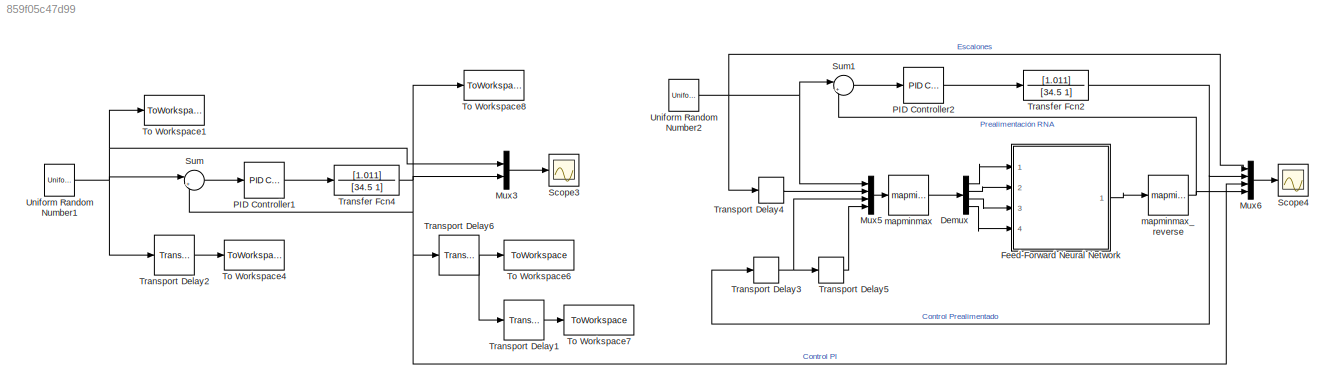
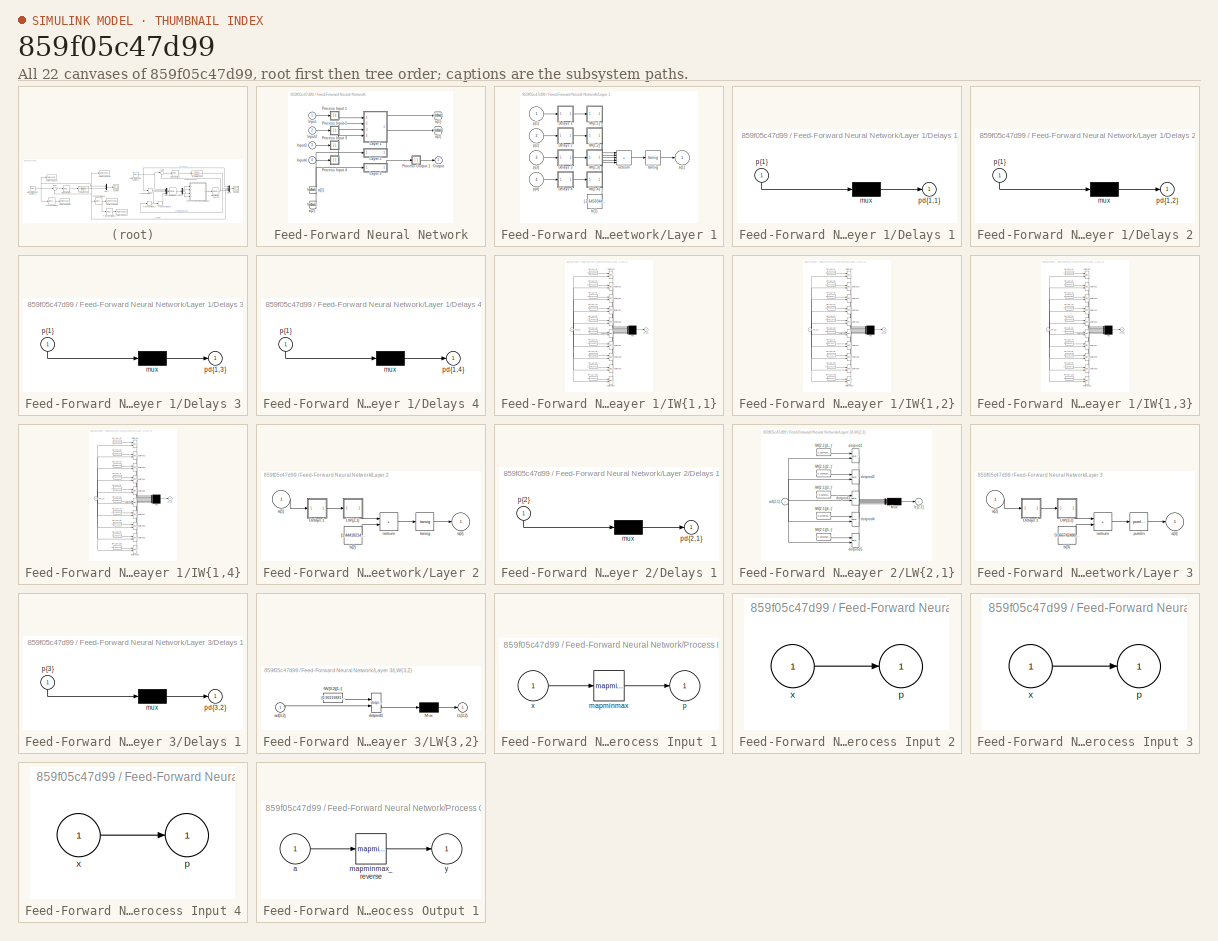
[diagram: thumbnail index - all 22 canvases of the model, root first then tree order]
MODEL slx_859f05c47d99
KIND model
CONFIG AbsTol = auto
CONFIG EnableMultiTasking = off
CONFIG FixedStep = 0.1
CONFIG MaxStep = auto
CONFIG MinStep = auto
CONFIG RelTol = 1e-3
CONFIG SampleTimeConstraint = Unconstrained
CONFIG Solver = FixedStepAuto
CONFIG SolverName = FixedStepAuto
CONFIG StartTime = 0.0
CONFIG StopTime = 1000
BLOCK [Demux] Demux
  Ports = [1, 4]
BLOCK [SubSystem] Feed-Forward Neural Network
  Ports = [4, 1]
  RequestExecContextInheritance = off
BLOCK [From] Feed-Forward Neural Network/ a{1} 
  GotoTag = feedback1
BLOCK [From] Feed-Forward Neural Network/ a{2} 
  GotoTag = feedback2
BLOCK [Inport] Feed-Forward Neural Network/Input
  PortDimensions = 1
BLOCK [Inport] Feed-Forward Neural Network/Input2
  Port = 2
  PortDimensions = 1
BLOCK [Inport] Feed-Forward Neural Network/Input3
  Port = 3
  PortDimensions = 1
BLOCK [Inport] Feed-Forward Neural Network/Input4
  Port = 4
  PortDimensions = 1
BLOCK [SubSystem] Feed-Forward Neural Network/Layer 1
  Ports = [4, 1]
  RequestExecContextInheritance = off
BLOCK [SubSystem] Feed-Forward Neural Network/Layer 1/Delays 1
  Ports = [1, 1]
  RequestExecContextInheritance = off
BLOCK [Mux] Feed-Forward Neural Network/Layer 1/Delays 1/mux
  Inputs = 1
  Ports = [1, 1]
BLOCK [Outport] Feed-Forward Neural Network/Layer 1/Delays 1/pd{1,1}
BLOCK [Inport] Feed-Forward Neural Network/Layer 1/Delays 1/p{1}
  NameLocation = left
  PortDimensions = 1
BLOCK [SubSystem] Feed-Forward Neural Network/Layer 1/Delays 2
  Ports = [1, 1]
  RequestExecContextInheritance = off
BLOCK [Mux] Feed-Forward Neural Network/Layer 1/Delays 2/mux
  Inputs = 1
  Ports = [1, 1]
BLOCK [Outport] Feed-Forward Neural Network/Layer 1/Delays 2/pd{1,2}
BLOCK [Inport] Feed-Forward Neural Network/Layer 1/Delays 2/p{1}
  NameLocation = left
  PortDimensions = 1
BLOCK [SubSystem] Feed-Forward Neural Network/Layer 1/Delays 3
  Ports = [1, 1]
  RequestExecContextInheritance = off
BLOCK [Mux] Feed-Forward Neural Network/Layer 1/Delays 3/mux
  Inputs = 1
  Ports = [1, 1]
BLOCK [Outport] Feed-Forward Neural Network/Layer 1/Delays 3/pd{1,3}
BLOCK [Inport] Feed-Forward Neural Network/Layer 1/Delays 3/p{1}
  NameLocation = left
  PortDimensions = 1
BLOCK [SubSystem] Feed-Forward Neural Network/Layer 1/Delays 4
  Ports = [1, 1]
  RequestExecContextInheritance = off
BLOCK [Mux] Feed-Forward Neural Network/Layer 1/Delays 4/mux
  Inputs = 1
  Ports = [1, 1]
BLOCK [Outport] Feed-Forward Neural Network/Layer 1/Delays 4/pd{1,4}
BLOCK [Inport] Feed-Forward Neural Network/Layer 1/Delays 4/p{1}
  NameLocation = left
  PortDimensions = 1
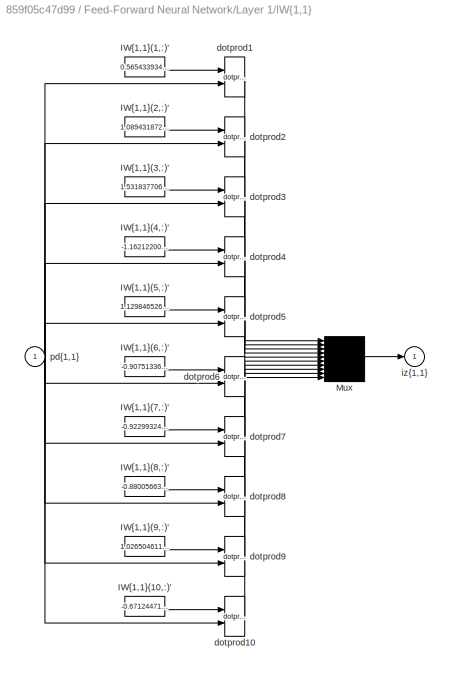
BLOCK [SubSystem] Feed-Forward Neural Network/Layer 1/IW{1,1}
  Ports = [1, 1]
  RequestExecContextInheritance = off
BLOCK [Constant] Feed-Forward Neural Network/Layer 1/IW{1,1}/IW{1,1}(1,:)'
  Value = 0.56543393431241983915214177613961510360240936279296875
BLOCK [Constant] Feed-Forward Neural Network/Layer 1/IW{1,1}/IW{1,1}(10,:)'
  Value = -0.67124471947095198931521053964388556778430938720703125
BLOCK [Constant] Feed-Forward Neural Network/Layer 1/IW{1,1}/IW{1,1}(2,:)'
  Value = 1.0894318724958613753273084512329660356044769287109375
BLOCK [Constant] Feed-Forward Neural Network/Layer 1/IW{1,1}/IW{1,1}(3,:)'
  Value = 1.53183770683037412396743093268014490604400634765625
BLOCK [Constant] Feed-Forward Neural Network/Layer 1/IW{1,1}/IW{1,1}(4,:)'
  Value = -1.162122005361766685638258422841317951679229736328125
BLOCK [Constant] Feed-Forward Neural Network/Layer 1/IW{1,1}/IW{1,1}(5,:)'
  Value = 1.1298465262484473914383897863444872200489044189453125
BLOCK [Constant] Feed-Forward Neural Network/Layer 1/IW{1,1}/IW{1,1}(6,:)'
  Value = -0.90751336673212834593726938692270778119564056396484375
BLOCK [Constant] Feed-Forward Neural Network/Layer 1/IW{1,1}/IW{1,1}(7,:)'
  Value = -0.9229932475193656227219207721645943820476531982421875
BLOCK [Constant] Feed-Forward Neural Network/Layer 1/IW{1,1}/IW{1,1}(8,:)'
  Value = -0.88005663794374056063674061078927479684352874755859375
BLOCK [Constant] Feed-Forward Neural Network/Layer 1/IW{1,1}/IW{1,1}(9,:)'
  Value = 1.02650461189359720748370818910188972949981689453125
BLOCK [Mux] Feed-Forward Neural Network/Layer 1/IW{1,1}/Mux
  Inputs = 10
  Ports = [10, 1]
BLOCK [Reference] Feed-Forward Neural Network/Layer 1/IW{1,1}/dotprod1  REF=neural/Weight Functions/dotprod
  Ports = [2, 1]
  SourceBlock = neural/Weight Functions/dotprod
  SourceProductBaseCode = NN
  SourceType = DOTPROD
BLOCK [Reference] Feed-Forward Neural Network/Layer 1/IW{1,1}/dotprod10  REF=neural/Weight Functions/dotprod
  Ports = [2, 1]
  SourceBlock = neural/Weight Functions/dotprod
  SourceProductBaseCode = NN
  SourceType = DOTPROD
BLOCK [Reference] Feed-Forward Neural Network/Layer 1/IW{1,1}/dotprod2  REF=neural/Weight Functions/dotprod
  Ports = [2, 1]
  SourceBlock = neural/Weight Functions/dotprod
  SourceProductBaseCode = NN
  SourceType = DOTPROD
BLOCK [Reference] Feed-Forward Neural Network/Layer 1/IW{1,1}/dotprod3  REF=neural/Weight Functions/dotprod
  Ports = [2, 1]
  SourceBlock = neural/Weight Functions/dotprod
  SourceProductBaseCode = NN
  SourceType = DOTPROD
BLOCK [Reference] Feed-Forward Neural Network/Layer 1/IW{1,1}/dotprod4  REF=neural/Weight Functions/dotprod
  Ports = [2, 1]
  SourceBlock = neural/Weight Functions/dotprod
  SourceProductBaseCode = NN
  SourceType = DOTPROD
BLOCK [Reference] Feed-Forward Neural Network/Layer 1/IW{1,1}/dotprod5  REF=neural/Weight Functions/dotprod
  Ports = [2, 1]
  SourceBlock = neural/Weight Functions/dotprod
  SourceProductBaseCode = NN
  SourceType = DOTPROD
BLOCK [Reference] Feed-Forward Neural Network/Layer 1/IW{1,1}/dotprod6  REF=neural/Weight Functions/dotprod
  Ports = [2, 1]
  SourceBlock = neural/Weight Functions/dotprod
  SourceProductBaseCode = NN
  SourceType = DOTPROD
BLOCK [Reference] Feed-Forward Neural Network/Layer 1/IW{1,1}/dotprod7  REF=neural/Weight Functions/dotprod
  Ports = [2, 1]
  SourceBlock = neural/Weight Functions/dotprod
  SourceProductBaseCode = NN
  SourceType = DOTPROD
BLOCK [Reference] Feed-Forward Neural Network/Layer 1/IW{1,1}/dotprod8  REF=neural/Weight Functions/dotprod
  Ports = [2, 1]
  SourceBlock = neural/Weight Functions/dotprod
  SourceProductBaseCode = NN
  SourceType = DOTPROD
BLOCK [Reference] Feed-Forward Neural Network/Layer 1/IW{1,1}/dotprod9  REF=neural/Weight Functions/dotprod
  Ports = [2, 1]
  SourceBlock = neural/Weight Functions/dotprod
  SourceProductBaseCode = NN
  SourceType = DOTPROD
BLOCK [Outport] Feed-Forward Neural Network/Layer 1/IW{1,1}/iz{1,1}
BLOCK [Inport] Feed-Forward Neural Network/Layer 1/IW{1,1}/pd{1,1}
  PortDimensions = 1
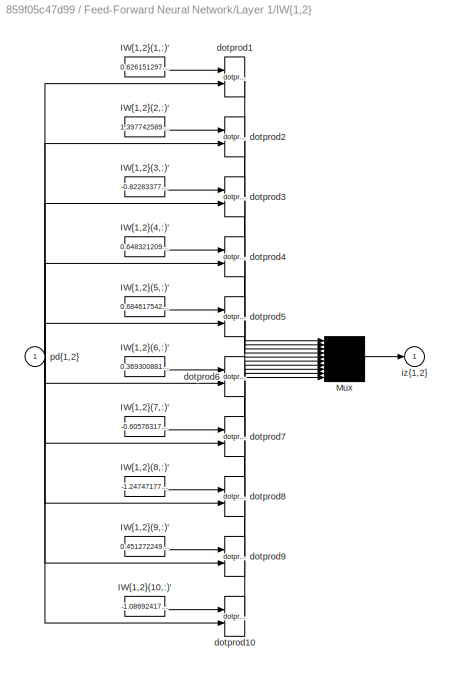
BLOCK [SubSystem] Feed-Forward Neural Network/Layer 1/IW{1,2}
  Ports = [1, 1]
  RequestExecContextInheritance = off
BLOCK [Constant] Feed-Forward Neural Network/Layer 1/IW{1,2}/IW{1,2}(1,:)'
  Value = 0.62615129700882443675169497510069049894809722900390625
BLOCK [Constant] Feed-Forward Neural Network/Layer 1/IW{1,2}/IW{1,2}(10,:)'
  Value = -1.0869241741434552128708901364007033407688140869140625
BLOCK [Constant] Feed-Forward Neural Network/Layer 1/IW{1,2}/IW{1,2}(2,:)'
  Value = 1.39774258904497283850787425762973725795745849609375
BLOCK [Constant] Feed-Forward Neural Network/Layer 1/IW{1,2}/IW{1,2}(3,:)'
  Value = -0.822833777575279423643905829521827399730682373046875
BLOCK [Constant] Feed-Forward Neural Network/Layer 1/IW{1,2}/IW{1,2}(4,:)'
  Value = 0.6483212094714454476473974864347837865352630615234375
BLOCK [Constant] Feed-Forward Neural Network/Layer 1/IW{1,2}/IW{1,2}(5,:)'
  Value = 0.68461754258206752865589805878698825836181640625
BLOCK [Constant] Feed-Forward Neural Network/Layer 1/IW{1,2}/IW{1,2}(6,:)'
  Value = 0.36930088134260719012758045209920965135097503662109375
BLOCK [Constant] Feed-Forward Neural Network/Layer 1/IW{1,2}/IW{1,2}(7,:)'
  Value = -0.605763175167964629252992381225340068340301513671875
BLOCK [Constant] Feed-Forward Neural Network/Layer 1/IW{1,2}/IW{1,2}(8,:)'
  Value = -1.2474717751429558187936663671280257403850555419921875
BLOCK [Constant] Feed-Forward Neural Network/Layer 1/IW{1,2}/IW{1,2}(9,:)'
  Value = 0.451272249611611275810219012782908976078033447265625
BLOCK [Mux] Feed-Forward Neural Network/Layer 1/IW{1,2}/Mux
  Inputs = 10
  Ports = [10, 1]
BLOCK [Reference] Feed-Forward Neural Network/Layer 1/IW{1,2}/dotprod1  REF=neural/Weight Functions/dotprod
  Ports = [2, 1]
  SourceBlock = neural/Weight Functions/dotprod
  SourceProductBaseCode = NN
  SourceType = DOTPROD
BLOCK [Reference] Feed-Forward Neural Network/Layer 1/IW{1,2}/dotprod10  REF=neural/Weight Functions/dotprod
  Ports = [2, 1]
  SourceBlock = neural/Weight Functions/dotprod
  SourceProductBaseCode = NN
  SourceType = DOTPROD
BLOCK [Reference] Feed-Forward Neural Network/Layer 1/IW{1,2}/dotprod2  REF=neural/Weight Functions/dotprod
  Ports = [2, 1]
  SourceBlock = neural/Weight Functions/dotprod
  SourceProductBaseCode = NN
  SourceType = DOTPROD
BLOCK [Reference] Feed-Forward Neural Network/Layer 1/IW{1,2}/dotprod3  REF=neural/Weight Functions/dotprod
  Ports = [2, 1]
  SourceBlock = neural/Weight Functions/dotprod
  SourceProductBaseCode = NN
  SourceType = DOTPROD
BLOCK [Reference] Feed-Forward Neural Network/Layer 1/IW{1,2}/dotprod4  REF=neural/Weight Functions/dotprod
  Ports = [2, 1]
  SourceBlock = neural/Weight Functions/dotprod
  SourceProductBaseCode = NN
  SourceType = DOTPROD
BLOCK [Reference] Feed-Forward Neural Network/Layer 1/IW{1,2}/dotprod5  REF=neural/Weight Functions/dotprod
  Ports = [2, 1]
  SourceBlock = neural/Weight Functions/dotprod
  SourceProductBaseCode = NN
  SourceType = DOTPROD
BLOCK [Reference] Feed-Forward Neural Network/Layer 1/IW{1,2}/dotprod6  REF=neural/Weight Functions/dotprod
  Ports = [2, 1]
  SourceBlock = neural/Weight Functions/dotprod
  SourceProductBaseCode = NN
  SourceType = DOTPROD
BLOCK [Reference] Feed-Forward Neural Network/Layer 1/IW{1,2}/dotprod7  REF=neural/Weight Functions/dotprod
  Ports = [2, 1]
  SourceBlock = neural/Weight Functions/dotprod
  SourceProductBaseCode = NN
  SourceType = DOTPROD
BLOCK [Reference] Feed-Forward Neural Network/Layer 1/IW{1,2}/dotprod8  REF=neural/Weight Functions/dotprod
  Ports = [2, 1]
  SourceBlock = neural/Weight Functions/dotprod
  SourceProductBaseCode = NN
  SourceType = DOTPROD
BLOCK [Reference] Feed-Forward Neural Network/Layer 1/IW{1,2}/dotprod9  REF=neural/Weight Functions/dotprod
  Ports = [2, 1]
  SourceBlock = neural/Weight Functions/dotprod
  SourceProductBaseCode = NN
  SourceType = DOTPROD
BLOCK [Outport] Feed-Forward Neural Network/Layer 1/IW{1,2}/iz{1,2}
BLOCK [Inport] Feed-Forward Neural Network/Layer 1/IW{1,2}/pd{1,2}
  PortDimensions = 1
BLOCK [SubSystem] Feed-Forward Neural Network/Layer 1/IW{1,3}
  Ports = [1, 1]
  RequestExecContextInheritance = off
BLOCK [Constant] Feed-Forward Neural Network/Layer 1/IW{1,3}/IW{1,3}(1,:)'
  Value = 1.6645863934005740158994512967183254659175872802734375
BLOCK [Constant] Feed-Forward Neural Network/Layer 1/IW{1,3}/IW{1,3}(10,:)'
  Value = -0.99969560778253896415890267235226929187774658203125
BLOCK [Constant] Feed-Forward Neural Network/Layer 1/IW{1,3}/IW{1,3}(2,:)'
  Value = -0.266695674288085715630813865573145449161529541015625
BLOCK [Constant] Feed-Forward Neural Network/Layer 1/IW{1,3}/IW{1,3}(3,:)'
  Value = -0.4295518903355792783571587278856895864009857177734375
BLOCK [Constant] Feed-Forward Neural Network/Layer 1/IW{1,3}/IW{1,3}(4,:)'
  Value = 0.6670166096274223743733955416246317327022552490234375
BLOCK [Constant] Feed-Forward Neural Network/Layer 1/IW{1,3}/IW{1,3}(5,:)'
  Value = -1.3894570953176401673090367694385349750518798828125
BLOCK [Constant] Feed-Forward Neural Network/Layer 1/IW{1,3}/IW{1,3}(6,:)'
  Value = 1.9091928523211214585586503744707442820072174072265625
BLOCK [Constant] Feed-Forward Neural Network/Layer 1/IW{1,3}/IW{1,3}(7,:)'
  Value = -0.8338653482967626207056355269742198288440704345703125
BLOCK [Constant] Feed-Forward Neural Network/Layer 1/IW{1,3}/IW{1,3}(8,:)'
  Value = -0.292187287584066035517338377758278511464595794677734375
BLOCK [Constant] Feed-Forward Neural Network/Layer 1/IW{1,3}/IW{1,3}(9,:)'
  Value = 1.75519844722857154550865743658505380153656005859375
BLOCK [Mux] Feed-Forward Neural Network/Layer 1/IW{1,3}/Mux
  Inputs = 10
  Ports = [10, 1]
BLOCK [Reference] Feed-Forward Neural Network/Layer 1/IW{1,3}/dotprod1  REF=neural/Weight Functions/dotprod
  Ports = [2, 1]
  SourceBlock = neural/Weight Functions/dotprod
  SourceProductBaseCode = NN
  SourceType = DOTPROD
BLOCK [Reference] Feed-Forward Neural Network/Layer 1/IW{1,3}/dotprod10  REF=neural/Weight Functions/dotprod
  Ports = [2, 1]
  SourceBlock = neural/Weight Functions/dotprod
  SourceProductBaseCode = NN
  SourceType = DOTPROD
BLOCK [Reference] Feed-Forward Neural Network/Layer 1/IW{1,3}/dotprod2  REF=neural/Weight Functions/dotprod
  Ports = [2, 1]
  SourceBlock = neural/Weight Functions/dotprod
  SourceProductBaseCode = NN
  SourceType = DOTPROD
BLOCK [Reference] Feed-Forward Neural Network/Layer 1/IW{1,3}/dotprod3  REF=neural/Weight Functions/dotprod
  Ports = [2, 1]
  SourceBlock = neural/Weight Functions/dotprod
  SourceProductBaseCode = NN
  SourceType = DOTPROD
BLOCK [Reference] Feed-Forward Neural Network/Layer 1/IW{1,3}/dotprod4  REF=neural/Weight Functions/dotprod
  Ports = [2, 1]
  SourceBlock = neural/Weight Functions/dotprod
  SourceProductBaseCode = NN
  SourceType = DOTPROD
BLOCK [Reference] Feed-Forward Neural Network/Layer 1/IW{1,3}/dotprod5  REF=neural/Weight Functions/dotprod
  Ports = [2, 1]
  SourceBlock = neural/Weight Functions/dotprod
  SourceProductBaseCode = NN
  SourceType = DOTPROD
BLOCK [Reference] Feed-Forward Neural Network/Layer 1/IW{1,3}/dotprod6  REF=neural/Weight Functions/dotprod
  Ports = [2, 1]
  SourceBlock = neural/Weight Functions/dotprod
  SourceProductBaseCode = NN
  SourceType = DOTPROD
BLOCK [Reference] Feed-Forward Neural Network/Layer 1/IW{1,3}/dotprod7  REF=neural/Weight Functions/dotprod
  Ports = [2, 1]
  SourceBlock = neural/Weight Functions/dotprod
  SourceProductBaseCode = NN
  SourceType = DOTPROD
BLOCK [Reference] Feed-Forward Neural Network/Layer 1/IW{1,3}/dotprod8  REF=neural/Weight Functions/dotprod
  Ports = [2, 1]
  SourceBlock = neural/Weight Functions/dotprod
  SourceProductBaseCode = NN
  SourceType = DOTPROD
BLOCK [Reference] Feed-Forward Neural Network/Layer 1/IW{1,3}/dotprod9  REF=neural/Weight Functions/dotprod
  Ports = [2, 1]
  SourceBlock = neural/Weight Functions/dotprod
  SourceProductBaseCode = NN
  SourceType = DOTPROD
BLOCK [Outport] Feed-Forward Neural Network/Layer 1/IW{1,3}/iz{1,3}
BLOCK [Inport] Feed-Forward Neural Network/Layer 1/IW{1,3}/pd{1,3}
  PortDimensions = 1
BLOCK [SubSystem] Feed-Forward Neural Network/Layer 1/IW{1,4}
  Ports = [1, 1]
  RequestExecContextInheritance = off
BLOCK [Constant] Feed-Forward Neural Network/Layer 1/IW{1,4}/IW{1,4}(1,:)'
  Value = -1.2943753601777545636508648385643027722835540771484375
BLOCK [Constant] Feed-Forward Neural Network/Layer 1/IW{1,4}/IW{1,4}(10,:)'
  Value = 2.084081432031244407454551037517376244068145751953125
BLOCK [Constant] Feed-Forward Neural Network/Layer 1/IW{1,4}/IW{1,4}(2,:)'
  Value = -0.7898513527902168984695663311867974698543548583984375
BLOCK [Constant] Feed-Forward Neural Network/Layer 1/IW{1,4}/IW{1,4}(3,:)'
  Value = -0.70955799003562514126741689324262551963329315185546875
BLOCK [Constant] Feed-Forward Neural Network/Layer 1/IW{1,4}/IW{1,4}(4,:)'
  Value = -0.52802909319926694120539423238369636237621307373046875
BLOCK [Constant] Feed-Forward Neural Network/Layer 1/IW{1,4}/IW{1,4}(5,:)'
  Value = 0.449134424632739837068839960920740850269794464111328125
BLOCK [Constant] Feed-Forward Neural Network/Layer 1/IW{1,4}/IW{1,4}(6,:)'
  Value = -1.16435235129654213181993327452801167964935302734375
BLOCK [Constant] Feed-Forward Neural Network/Layer 1/IW{1,4}/IW{1,4}(7,:)'
  Value = 0.76928562656517740503403501861612312495708465576171875
BLOCK [Constant] Feed-Forward Neural Network/Layer 1/IW{1,4}/IW{1,4}(8,:)'
  Value = 1.18871102922463389717222526087425649166107177734375
BLOCK [Constant] Feed-Forward Neural Network/Layer 1/IW{1,4}/IW{1,4}(9,:)'
  Value = -1.3138134048477592141779268786194734275341033935546875
BLOCK [Mux] Feed-Forward Neural Network/Layer 1/IW{1,4}/Mux
  Inputs = 10
  Ports = [10, 1]
BLOCK [Reference] Feed-Forward Neural Network/Layer 1/IW{1,4}/dotprod1  REF=neural/Weight Functions/dotprod
  Ports = [2, 1]
  SourceBlock = neural/Weight Functions/dotprod
  SourceProductBaseCode = NN
  SourceType = DOTPROD
BLOCK [Reference] Feed-Forward Neural Network/Layer 1/IW{1,4}/dotprod10  REF=neural/Weight Functions/dotprod
  Ports = [2, 1]
  SourceBlock = neural/Weight Functions/dotprod
  SourceProductBaseCode = NN
  SourceType = DOTPROD
BLOCK [Reference] Feed-Forward Neural Network/Layer 1/IW{1,4}/dotprod2  REF=neural/Weight Functions/dotprod
  Ports = [2, 1]
  SourceBlock = neural/Weight Functions/dotprod
  SourceProductBaseCode = NN
  SourceType = DOTPROD
BLOCK [Reference] Feed-Forward Neural Network/Layer 1/IW{1,4}/dotprod3  REF=neural/Weight Functions/dotprod
  Ports = [2, 1]
  SourceBlock = neural/Weight Functions/dotprod
  SourceProductBaseCode = NN
  SourceType = DOTPROD
BLOCK [Reference] Feed-Forward Neural Network/Layer 1/IW{1,4}/dotprod4  REF=neural/Weight Functions/dotprod
  Ports = [2, 1]
  SourceBlock = neural/Weight Functions/dotprod
  SourceProductBaseCode = NN
  SourceType = DOTPROD
BLOCK [Reference] Feed-Forward Neural Network/Layer 1/IW{1,4}/dotprod5  REF=neural/Weight Functions/dotprod
  Ports = [2, 1]
  SourceBlock = neural/Weight Functions/dotprod
  SourceProductBaseCode = NN
  SourceType = DOTPROD
BLOCK [Reference] Feed-Forward Neural Network/Layer 1/IW{1,4}/dotprod6  REF=neural/Weight Functions/dotprod
  Ports = [2, 1]
  SourceBlock = neural/Weight Functions/dotprod
  SourceProductBaseCode = NN
  SourceType = DOTPROD
BLOCK [Reference] Feed-Forward Neural Network/Layer 1/IW{1,4}/dotprod7  REF=neural/Weight Functions/dotprod
  Ports = [2, 1]
  SourceBlock = neural/Weight Functions/dotprod
  SourceProductBaseCode = NN
  SourceType = DOTPROD
BLOCK [Reference] Feed-Forward Neural Network/Layer 1/IW{1,4}/dotprod8  REF=neural/Weight Functions/dotprod
  Ports = [2, 1]
  SourceBlock = neural/Weight Functions/dotprod
  SourceProductBaseCode = NN
  SourceType = DOTPROD
BLOCK [Reference] Feed-Forward Neural Network/Layer 1/IW{1,4}/dotprod9  REF=neural/Weight Functions/dotprod
  Ports = [2, 1]
  SourceBlock = neural/Weight Functions/dotprod
  SourceProductBaseCode = NN
  SourceType = DOTPROD
BLOCK [Outport] Feed-Forward Neural Network/Layer 1/IW{1,4}/iz{1,4}
BLOCK [Inport] Feed-Forward Neural Network/Layer 1/IW{1,4}/pd{1,4}
  PortDimensions = 1
BLOCK [Outport] Feed-Forward Neural Network/Layer 1/a{1}
  InitialOutput = [0;0;0;0;0;0;0;0;0;0]
BLOCK [Constant] Feed-Forward Neural Network/Layer 1/b{1}
  Value = [-2.645034457355993851024322793819010257720947265625;-1.508379012577794497929062345065176486968994140625;-1.3072123814539364783371411249390803277492523193359375;0.50313851768314676871085566745023243129253387451171875;0.1397685409599163930405296696335426531732082366943359375;-0.5245249752405436449720355085446499288082122802734375;-0.9730845295591505905719031943590380251407623291015625;-1.2426946001...<+145ch>
BLOCK [Sum] Feed-Forward Neural Network/Layer 1/netsum
  IconShape = rectangular
  InputSameDT = on
  Inputs = 5
  OutDataTypeStr = Inherit: Same as first input
  Ports = [5, 1]
  SaturateOnIntegerOverflow = on
BLOCK [Inport] Feed-Forward Neural Network/Layer 1/p{1}
  PortDimensions = 1
BLOCK [Inport] Feed-Forward Neural Network/Layer 1/p{2}
  Port = 2
  PortDimensions = 1
BLOCK [Inport] Feed-Forward Neural Network/Layer 1/p{3}
  Port = 3
  PortDimensions = 1
BLOCK [Inport] Feed-Forward Neural Network/Layer 1/p{4}
  Port = 4
  PortDimensions = 1
BLOCK [Reference] Feed-Forward Neural Network/Layer 1/tansig  REF=neural/Transfer Functions/tansig
  Ports = [1, 1]
  SourceBlock = neural/Transfer Functions/tansig
  SourceProductBaseCode = NN
  SourceType = TANSIG
BLOCK [SubSystem] Feed-Forward Neural Network/Layer 2
  Ports = [1, 1]
  RequestExecContextInheritance = off
BLOCK [SubSystem] Feed-Forward Neural Network/Layer 2/Delays 1
  Ports = [1, 1]
  RequestExecContextInheritance = off
BLOCK [Mux] Feed-Forward Neural Network/Layer 2/Delays 1/mux
  Inputs = 1
  Ports = [1, 1]
BLOCK [Outport] Feed-Forward Neural Network/Layer 2/Delays 1/pd{2,1}
BLOCK [Inport] Feed-Forward Neural Network/Layer 2/Delays 1/p{2}
  NameLocation = left
  PortDimensions = 10
BLOCK [SubSystem] Feed-Forward Neural Network/Layer 2/LW{2,1}
  Ports = [1, 1]
  RequestExecContextInheritance = off
BLOCK [Constant] Feed-Forward Neural Network/Layer 2/LW{2,1}/IW{2,1}(1,:)'
  Value = [0.1354401509569258532650337656377814710140228271484375;-0.01421113913123620182965556324461431358940899372100830078125;-1.048241918439595909973149900906719267368316650390625;-0.421937071029474974892536920378915965557098388671875;-0.2371775375539734997953900119682657532393932342529296875;0.807006589788321182510344442562200129032135009765625;0.787781764690547614549132049432955682277679443359375;-0.6...<+162ch>
BLOCK [Constant] Feed-Forward Neural Network/Layer 2/LW{2,1}/IW{2,1}(2,:)'
  Value = [0.240461909821431785161394145688973367214202880859375;-0.14560895222818592831259820741252042353153228759765625;-0.65407342096412579568465162083157338201999664306640625;-0.5806764026784383414536705458885990083217620849609375;0.38887411023773676976844626551610417664051055908203125;0.69453111755627794376977135470951907336711883544921875;-0.152313413464593094825971775208017788827419281005859375;-0.57...<+160ch>
BLOCK [Constant] Feed-Forward Neural Network/Layer 2/LW{2,1}/IW{2,1}(3,:)'
  Value = [-0.1506042382159744619229968520812690258026123046875;0.1392987937933017061897800203951192088425159454345703125;0.26354830574405874177301711824839003384113311767578125;-0.81118987516533047621436480767442844808101654052734375;-0.84357072505529606676333287396118976175785064697265625;-0.0076624026257585721444431925419848994351923465728759765625;-0.51317659105508905970083333158981986343860626220703125...<+172ch>
BLOCK [Constant] Feed-Forward Neural Network/Layer 2/LW{2,1}/IW{2,1}(4,:)'
  Value = [0.2378973625783947498657511232522665522992610931396484375;0.425071705670643618102388927582069300115108489990234375;1.0837831391761252319838604307733476161956787109375;-0.0048050310025101981847850396434296271763741970062255859375;-0.454098660630551986816527687551570124924182891845703125;-0.459574782583480334618997176221455447375774383544921875;0.5757968720784258920275533455424010753631591796875;0....<+167ch>
BLOCK [Constant] Feed-Forward Neural Network/Layer 2/LW{2,1}/IW{2,1}(5,:)'
  Value = [0.287529681271754322668954273467534221708774566650390625;0.6062529033524064470128678294713608920574188232421875;-0.050892899778794901954892537787600304000079631805419921875;0.09352015600599523914571165050801937468349933624267578125;-0.6563451233726127487244639269192703068256378173828125;1.381202529814203217028989456593990325927734375;-0.001553259790010478886418399113722443871665745973587036132812...<+175ch>
BLOCK [Mux] Feed-Forward Neural Network/Layer 2/LW{2,1}/Mux
  Inputs = 5
  Ports = [5, 1]
BLOCK [Inport] Feed-Forward Neural Network/Layer 2/LW{2,1}/ad{2,1}
  PortDimensions = 10
BLOCK [Reference] Feed-Forward Neural Network/Layer 2/LW{2,1}/dotprod1  REF=neural/Weight Functions/dotprod
  Ports = [2, 1]
  SourceBlock = neural/Weight Functions/dotprod
  SourceProductBaseCode = NN
  SourceType = DOTPROD
BLOCK [Reference] Feed-Forward Neural Network/Layer 2/LW{2,1}/dotprod2  REF=neural/Weight Functions/dotprod
  Ports = [2, 1]
  SourceBlock = neural/Weight Functions/dotprod
  SourceProductBaseCode = NN
  SourceType = DOTPROD
BLOCK [Reference] Feed-Forward Neural Network/Layer 2/LW{2,1}/dotprod3  REF=neural/Weight Functions/dotprod
  Ports = [2, 1]
  SourceBlock = neural/Weight Functions/dotprod
  SourceProductBaseCode = NN
  SourceType = DOTPROD
BLOCK [Reference] Feed-Forward Neural Network/Layer 2/LW{2,1}/dotprod4  REF=neural/Weight Functions/dotprod
  Ports = [2, 1]
  SourceBlock = neural/Weight Functions/dotprod
  SourceProductBaseCode = NN
  SourceType = DOTPROD
BLOCK [Reference] Feed-Forward Neural Network/Layer 2/LW{2,1}/dotprod5  REF=neural/Weight Functions/dotprod
  Ports = [2, 1]
  SourceBlock = neural/Weight Functions/dotprod
  SourceProductBaseCode = NN
  SourceType = DOTPROD
BLOCK [Outport] Feed-Forward Neural Network/Layer 2/LW{2,1}/lz{2,1}
BLOCK [Inport] Feed-Forward Neural Network/Layer 2/a{1} 
  PortDimensions = 10
BLOCK [Outport] Feed-Forward Neural Network/Layer 2/a{2}
  InitialOutput = [0;0;0;0;0]
BLOCK [Constant] Feed-Forward Neural Network/Layer 2/b{2}
  Value = [1.4441821443414391001880403564427979290485382080078125;-0.82082816021264515260469352142536081373691558837890625;0.0604027851777334257032947562038316391408443450927734375;0.9479051197480472534806494877557270228862762451171875;1.7703397141502430489623520770692266523838043212890625]
BLOCK [Sum] Feed-Forward Neural Network/Layer 2/netsum
  IconShape = rectangular
  InputSameDT = on
  Inputs = 2
  OutDataTypeStr = Inherit: Same as first input
  Ports = [2, 1]
  SaturateOnIntegerOverflow = on
BLOCK [Reference] Feed-Forward Neural Network/Layer 2/tansig  REF=neural/Transfer Functions/tansig
  Ports = [1, 1]
  SourceBlock = neural/Transfer Functions/tansig
  SourceProductBaseCode = NN
  SourceType = TANSIG
BLOCK [SubSystem] Feed-Forward Neural Network/Layer 3
  Ports = [1, 1]
  RequestExecContextInheritance = off
BLOCK [SubSystem] Feed-Forward Neural Network/Layer 3/Delays 1
  Ports = [1, 1]
  RequestExecContextInheritance = off
BLOCK [Mux] Feed-Forward Neural Network/Layer 3/Delays 1/mux
  Inputs = 1
  Ports = [1, 1]
BLOCK [Outport] Feed-Forward Neural Network/Layer 3/Delays 1/pd{3,2}
BLOCK [Inport] Feed-Forward Neural Network/Layer 3/Delays 1/p{3}
  NameLocation = left
  PortDimensions = 5
BLOCK [SubSystem] Feed-Forward Neural Network/Layer 3/LW{3,2}
  Ports = [1, 1]
  RequestExecContextInheritance = off
BLOCK [Constant] Feed-Forward Neural Network/Layer 3/LW{3,2}/IW{3,2}(1,:)'
  Value = [0.9021988114818746407053140501375310122966766357421875;1.641221161524577976109640076174400746822357177734375;0.8289405934777669404667221897398121654987335205078125;-0.157639943928128911654340527093154378235340118408203125;0.378011497164554288730187181499786674976348876953125]
BLOCK [Mux] Feed-Forward Neural Network/Layer 3/LW{3,2}/Mux
  Inputs = 1
  Ports = [1, 1]
BLOCK [Inport] Feed-Forward Neural Network/Layer 3/LW{3,2}/ad{3,2}
  PortDimensions = 5
BLOCK [Reference] Feed-Forward Neural Network/Layer 3/LW{3,2}/dotprod1  REF=neural/Weight Functions/dotprod
  Ports = [2, 1]
  SourceBlock = neural/Weight Functions/dotprod
  SourceProductBaseCode = NN
  SourceType = DOTPROD
BLOCK [Outport] Feed-Forward Neural Network/Layer 3/LW{3,2}/lz{3,2}
BLOCK [Inport] Feed-Forward Neural Network/Layer 3/a{2} 
  PortDimensions = 5
BLOCK [Outport] Feed-Forward Neural Network/Layer 3/a{3}
  InitialOutput = 0
BLOCK [Constant] Feed-Forward Neural Network/Layer 3/b{3}
  Value = 0.0667424884908356386148398087243549525737762451171875
BLOCK [Sum] Feed-Forward Neural Network/Layer 3/netsum
  IconShape = rectangular
  InputSameDT = on
  Inputs = 2
  OutDataTypeStr = Inherit: Same as first input
  Ports = [2, 1]
  SaturateOnIntegerOverflow = on
BLOCK [Reference] Feed-Forward Neural Network/Layer 3/purelin  REF=neural/Transfer Functions/purelin
  Ports = [1, 1]
  SourceBlock = neural/Transfer Functions/purelin
  SourceProductBaseCode = NN
  SourceType = PURELIN
BLOCK [Outport] Feed-Forward Neural Network/Output
  InitialOutput = 0
BLOCK [SubSystem] Feed-Forward Neural Network/Process Input 1
  Ports = [1, 1]
  RequestExecContextInheritance = off
BLOCK [Reference] Feed-Forward Neural Network/Process Input 1/mapminmax  REF=neural/Processing Functions/mapminmax
  Ports = [1, 1]
  SourceBlock = neural/Processing Functions/mapminmax
  SourceProductBaseCode = NN
  SourceType = MAPMINMAX Preprocess
BLOCK [Outport] Feed-Forward Neural Network/Process Input 1/p
  PortDimensions = 1
BLOCK [Inport] Feed-Forward Neural Network/Process Input 1/x
  PortDimensions = 1
BLOCK [SubSystem] Feed-Forward Neural Network/Process Input 2
  Ports = [1, 1]
  RequestExecContextInheritance = off
BLOCK [Outport] Feed-Forward Neural Network/Process Input 2/p
  PortDimensions = 1
BLOCK [Inport] Feed-Forward Neural Network/Process Input 2/x
  PortDimensions = 1
BLOCK [SubSystem] Feed-Forward Neural Network/Process Input 3
  Ports = [1, 1]
  RequestExecContextInheritance = off
BLOCK [Outport] Feed-Forward Neural Network/Process Input 3/p
  PortDimensions = 1
BLOCK [Inport] Feed-Forward Neural Network/Process Input 3/x
  PortDimensions = 1
BLOCK [SubSystem] Feed-Forward Neural Network/Process Input 4
  Ports = [1, 1]
  RequestExecContextInheritance = off
BLOCK [Outport] Feed-Forward Neural Network/Process Input 4/p
  PortDimensions = 1
BLOCK [Inport] Feed-Forward Neural Network/Process Input 4/x
  PortDimensions = 1
BLOCK [SubSystem] Feed-Forward Neural Network/Process Output 1
  Ports = [1, 1]
  RequestExecContextInheritance = off
BLOCK [Inport] Feed-Forward Neural Network/Process Output 1/a
  PortDimensions = 1
BLOCK [Reference] Feed-Forward Neural Network/Process Output 1/mapminmax_reverse  REF=neural/Processing Functions/mapminmax_reverse
  Ports = [1, 1]
  SourceBlock = neural/Processing Functions/mapminmax_reverse
  SourceProductBaseCode = NN
  SourceType = MAPMINMAX Reverse Process
BLOCK [Outport] Feed-Forward Neural Network/Process Output 1/y
  PortDimensions = 1
BLOCK [Goto] Feed-Forward Neural Network/a{1}
  GotoTag = feedback1
BLOCK [Goto] Feed-Forward Neural Network/a{2}
  GotoTag = feedback2
BLOCK [Mux] Mux3
  DisplayOption = bar
  Inputs = 2
  Ports = [2, 1]
BLOCK [Mux] Mux5
  DisplayOption = bar
  Ports = [4, 1]
BLOCK [Mux] Mux6
  DisplayOption = bar
  Ports = [4, 1]
BLOCK [Reference] PID Controller1  REF=simulink/Continuous/PID Controller
  Ports = [1, 1]
  SourceBlock = simulink/Continuous/PID Controller
  SourceProductBaseCode = SL
  SourceType = PID 1dof
BLOCK [Reference] PID Controller2  REF=simulink/Continuous/PID Controller
  Ports = [1, 1]
  SourceBlock = simulink/Continuous/PID Controller
  SourceProductBaseCode = SL
  SourceType = PID 1dof
BLOCK [Scope] Scope3
  Floating = off
  NumInputPorts = 1
  Ports = [1]
  ScopeSpecificationString = Simulink.scopes.TimeScopeBlockCfg('CurrentConfiguration', extmgr.ConfigurationSet(extmgr.Configuration('Core','General UI',true),extmgr.Configuration('Core','Source UI',true),extmgr.Configuration('Sources','WiredSimulink',true,'DataLoggingVariableName','ScopeData1'),extmgr.Configuration('Visuals','Time Domain',true,'SerializedDisplays',{struct('MinYLimReal','-7.2399','MaxYLimReal','53.40615','YLab...<+1425ch>
BLOCK [Scope] Scope4
  Floating = off
  NumInputPorts = 1
  Ports = [1]
  ScopeSpecificationString = Simulink.scopes.TimeScopeBlockCfg('CurrentConfiguration', extmgr.ConfigurationSet(extmgr.Configuration('Core','General UI',true),extmgr.Configuration('Core','Source UI',true),extmgr.Configuration('Sources','WiredSimulink',true,'DataLoggingVariableName','ScopeData3'),extmgr.Configuration('Visuals','Time Domain',true,'SerializedDisplays',{struct('MinYLimReal','-7.26655','MaxYLimReal','53.41357','YLa...<+1579ch>
BLOCK [Sum] Sum
  Inputs = |+-
  Ports = [2, 1]
BLOCK [Sum] Sum1
  Inputs = |+-
  Ports = [2, 1]
BLOCK [ToWorkspace] To Workspace1
  MaxDataPoints = inf
  Ports = [1]
  SampleTime = 0.1
  VariableName = U_Control
BLOCK [ToWorkspace] To Workspace4
  MaxDataPoints = inf
  Ports = [1]
  SampleTime = 0.1
  VariableName = U_Control_R
BLOCK [ToWorkspace] To Workspace6
  MaxDataPoints = inf
  Ports = [1]
  SampleTime = 0.1
  VariableName = Salida_Planta_R
BLOCK [ToWorkspace] To Workspace7
  MaxDataPoints = inf
  Ports = [1]
  SampleTime = 0.1
  VariableName = Salida_Planta_R1
BLOCK [ToWorkspace] To Workspace8
  MaxDataPoints = inf
  Ports = [1]
  SampleTime = 0.1
  VariableName = SalidaPlanta
BLOCK [TransferFcn] Transfer Fcn2
  ContinuousStateAttributes = 'es'
  Denominator = [34.5 1]
  Numerator = [1.011]
BLOCK [TransferFcn] Transfer Fcn4
  ContinuousStateAttributes = 'es'
  Denominator = [34.5 1]
  Numerator = [1.011]
BLOCK [TransportDelay] Transport Delay1
  DelayTime = 0.1
  Ports = [1, 1]
BLOCK [TransportDelay] Transport Delay2
  DelayTime = 0.1
  Ports = [1, 1]
BLOCK [TransportDelay] Transport Delay3
  DelayTime = 0.1
  Ports = [1, 1]
BLOCK [TransportDelay] Transport Delay4
  DelayTime = 0.1
  Ports = [1, 1]
BLOCK [TransportDelay] Transport Delay5
  DelayTime = 0.1
  Ports = [1, 1]
BLOCK [TransportDelay] Transport Delay6
  DelayTime = 0.1
  Ports = [1, 1]
BLOCK [UniformRandomNumber] Uniform Random Number1
  Maximum = 50
  Minimum = 0
  SampleTime = 50
BLOCK [UniformRandomNumber] Uniform Random Number2
  Maximum = 50
  Minimum = 0
  SampleTime = 50
BLOCK [Reference] mapminmax  REF=neural/Processing Functions/mapminmax
  Ports = [1, 1]
  SourceBlock = neural/Processing Functions/mapminmax
  SourceProductBaseCode = NN
  SourceType = MAPMINMAX Preprocess
BLOCK [Reference] mapminmax_reverse  REF=neural/Processing Functions/mapminmax_reverse
  Ports = [1, 1]
  SourceBlock = neural/Processing Functions/mapminmax_reverse
  SourceProductBaseCode = NN
  SourceType = MAPMINMAX Reverse Process
LINE Demux:1 -> Feed-Forward Neural Network:1
LINE Demux:2 -> Feed-Forward Neural Network:2
LINE Demux:3 -> Feed-Forward Neural Network:3
LINE Demux:4 -> Feed-Forward Neural Network:4
LINE Feed-Forward Neural Network/ a{1} :1 -> Feed-Forward Neural Network/Layer 2:1
LINE Feed-Forward Neural Network/ a{2} :1 -> Feed-Forward Neural Network/Layer 3:1
LINE Feed-Forward Neural Network/Input2:1 -> Feed-Forward Neural Network/Process Input 2:1
LINE Feed-Forward Neural Network/Input3:1 -> Feed-Forward Neural Network/Process Input 3:1
LINE Feed-Forward Neural Network/Input4:1 -> Feed-Forward Neural Network/Process Input 4:1
LINE Feed-Forward Neural Network/Input:1 -> Feed-Forward Neural Network/Process Input 1:1
LINE Feed-Forward Neural Network/Layer 1/Delays 1/mux:1 -> Feed-Forward Neural Network/Layer 1/Delays 1/pd{1,1}:1
LINE Feed-Forward Neural Network/Layer 1/Delays 1/p{1}:1 -> Feed-Forward Neural Network/Layer 1/Delays 1/mux:1
LINE Feed-Forward Neural Network/Layer 1/Delays 1:1 -> Feed-Forward Neural Network/Layer 1/IW{1,1}:1
LINE Feed-Forward Neural Network/Layer 1/Delays 2/mux:1 -> Feed-Forward Neural Network/Layer 1/Delays 2/pd{1,2}:1
LINE Feed-Forward Neural Network/Layer 1/Delays 2/p{1}:1 -> Feed-Forward Neural Network/Layer 1/Delays 2/mux:1
LINE Feed-Forward Neural Network/Layer 1/Delays 2:1 -> Feed-Forward Neural Network/Layer 1/IW{1,2}:1
LINE Feed-Forward Neural Network/Layer 1/Delays 3/mux:1 -> Feed-Forward Neural Network/Layer 1/Delays 3/pd{1,3}:1
LINE Feed-Forward Neural Network/Layer 1/Delays 3/p{1}:1 -> Feed-Forward Neural Network/Layer 1/Delays 3/mux:1
LINE Feed-Forward Neural Network/Layer 1/Delays 3:1 -> Feed-Forward Neural Network/Layer 1/IW{1,3}:1
LINE Feed-Forward Neural Network/Layer 1/Delays 4/mux:1 -> Feed-Forward Neural Network/Layer 1/Delays 4/pd{1,4}:1
LINE Feed-Forward Neural Network/Layer 1/Delays 4/p{1}:1 -> Feed-Forward Neural Network/Layer 1/Delays 4/mux:1
LINE Feed-Forward Neural Network/Layer 1/Delays 4:1 -> Feed-Forward Neural Network/Layer 1/IW{1,4}:1
LINE Feed-Forward Neural Network/Layer 1/IW{1,1}/IW{1,1}(1,:)':1 -> Feed-Forward Neural Network/Layer 1/IW{1,1}/dotprod1:1
LINE Feed-Forward Neural Network/Layer 1/IW{1,1}/IW{1,1}(10,:)':1 -> Feed-Forward Neural Network/Layer 1/IW{1,1}/dotprod10:1
LINE Feed-Forward Neural Network/Layer 1/IW{1,1}/IW{1,1}(2,:)':1 -> Feed-Forward Neural Network/Layer 1/IW{1,1}/dotprod2:1
LINE Feed-Forward Neural Network/Layer 1/IW{1,1}/IW{1,1}(3,:)':1 -> Feed-Forward Neural Network/Layer 1/IW{1,1}/dotprod3:1
LINE Feed-Forward Neural Network/Layer 1/IW{1,1}/IW{1,1}(4,:)':1 -> Feed-Forward Neural Network/Layer 1/IW{1,1}/dotprod4:1
LINE Feed-Forward Neural Network/Layer 1/IW{1,1}/IW{1,1}(5,:)':1 -> Feed-Forward Neural Network/Layer 1/IW{1,1}/dotprod5:1
LINE Feed-Forward Neural Network/Layer 1/IW{1,1}/IW{1,1}(6,:)':1 -> Feed-Forward Neural Network/Layer 1/IW{1,1}/dotprod6:1
LINE Feed-Forward Neural Network/Layer 1/IW{1,1}/IW{1,1}(7,:)':1 -> Feed-Forward Neural Network/Layer 1/IW{1,1}/dotprod7:1
LINE Feed-Forward Neural Network/Layer 1/IW{1,1}/IW{1,1}(8,:)':1 -> Feed-Forward Neural Network/Layer 1/IW{1,1}/dotprod8:1
LINE Feed-Forward Neural Network/Layer 1/IW{1,1}/IW{1,1}(9,:)':1 -> Feed-Forward Neural Network/Layer 1/IW{1,1}/dotprod9:1
LINE Feed-Forward Neural Network/Layer 1/IW{1,1}/Mux:1 -> Feed-Forward Neural Network/Layer 1/IW{1,1}/iz{1,1}:1
LINE Feed-Forward Neural Network/Layer 1/IW{1,1}/dotprod10:1 -> Feed-Forward Neural Network/Layer 1/IW{1,1}/Mux:10
LINE Feed-Forward Neural Network/Layer 1/IW{1,1}/dotprod1:1 -> Feed-Forward Neural Network/Layer 1/IW{1,1}/Mux:1
LINE Feed-Forward Neural Network/Layer 1/IW{1,1}/dotprod2:1 -> Feed-Forward Neural Network/Layer 1/IW{1,1}/Mux:2
LINE Feed-Forward Neural Network/Layer 1/IW{1,1}/dotprod3:1 -> Feed-Forward Neural Network/Layer 1/IW{1,1}/Mux:3
LINE Feed-Forward Neural Network/Layer 1/IW{1,1}/dotprod4:1 -> Feed-Forward Neural Network/Layer 1/IW{1,1}/Mux:4
LINE Feed-Forward Neural Network/Layer 1/IW{1,1}/dotprod5:1 -> Feed-Forward Neural Network/Layer 1/IW{1,1}/Mux:5
LINE Feed-Forward Neural Network/Layer 1/IW{1,1}/dotprod6:1 -> Feed-Forward Neural Network/Layer 1/IW{1,1}/Mux:6
LINE Feed-Forward Neural Network/Layer 1/IW{1,1}/dotprod7:1 -> Feed-Forward Neural Network/Layer 1/IW{1,1}/Mux:7
LINE Feed-Forward Neural Network/Layer 1/IW{1,1}/dotprod8:1 -> Feed-Forward Neural Network/Layer 1/IW{1,1}/Mux:8
LINE Feed-Forward Neural Network/Layer 1/IW{1,1}/dotprod9:1 -> Feed-Forward Neural Network/Layer 1/IW{1,1}/Mux:9
NET Feed-Forward Neural Network/Layer 1/IW{1,1}/pd{1,1}:1 -> Feed-Forward Neural Network/Layer 1/IW{1,1}/dotprod10:2, Feed-Forward Neural Network/Layer 1/IW{1,1}/dotprod1:2, Feed-Forward Neural Network/Layer 1/IW{1,1}/dotprod2:2, Feed-Forward Neural Network/Layer 1/IW{1,1}/dotprod3:2, Feed-Forward Neural Network/Layer 1/IW{1,1}/dotprod4:2, Feed-Forward Neural Network/Layer 1/IW{1,1}/dotprod5:2, Feed-Forward Neural Network/Layer 1/IW{1,1}/dotprod6:2, Feed-Forward Neural Network/Layer 1/IW{1,1}/dotprod7:2, Feed-Forward Neural Network/Layer 1/IW{1,1}/dotprod8:2, Feed-Forward Neural Network/Layer 1/IW{1,1}/dotprod9:2
LINE Feed-Forward Neural Network/Layer 1/IW{1,1}:1 -> Feed-Forward Neural Network/Layer 1/netsum:1
LINE Feed-Forward Neural Network/Layer 1/IW{1,2}/IW{1,2}(1,:)':1 -> Feed-Forward Neural Network/Layer 1/IW{1,2}/dotprod1:1
LINE Feed-Forward Neural Network/Layer 1/IW{1,2}/IW{1,2}(10,:)':1 -> Feed-Forward Neural Network/Layer 1/IW{1,2}/dotprod10:1
LINE Feed-Forward Neural Network/Layer 1/IW{1,2}/IW{1,2}(2,:)':1 -> Feed-Forward Neural Network/Layer 1/IW{1,2}/dotprod2:1
LINE Feed-Forward Neural Network/Layer 1/IW{1,2}/IW{1,2}(3,:)':1 -> Feed-Forward Neural Network/Layer 1/IW{1,2}/dotprod3:1
LINE Feed-Forward Neural Network/Layer 1/IW{1,2}/IW{1,2}(4,:)':1 -> Feed-Forward Neural Network/Layer 1/IW{1,2}/dotprod4:1
LINE Feed-Forward Neural Network/Layer 1/IW{1,2}/IW{1,2}(5,:)':1 -> Feed-Forward Neural Network/Layer 1/IW{1,2}/dotprod5:1
LINE Feed-Forward Neural Network/Layer 1/IW{1,2}/IW{1,2}(6,:)':1 -> Feed-Forward Neural Network/Layer 1/IW{1,2}/dotprod6:1
LINE Feed-Forward Neural Network/Layer 1/IW{1,2}/IW{1,2}(7,:)':1 -> Feed-Forward Neural Network/Layer 1/IW{1,2}/dotprod7:1
LINE Feed-Forward Neural Network/Layer 1/IW{1,2}/IW{1,2}(8,:)':1 -> Feed-Forward Neural Network/Layer 1/IW{1,2}/dotprod8:1
LINE Feed-Forward Neural Network/Layer 1/IW{1,2}/IW{1,2}(9,:)':1 -> Feed-Forward Neural Network/Layer 1/IW{1,2}/dotprod9:1
LINE Feed-Forward Neural Network/Layer 1/IW{1,2}/Mux:1 -> Feed-Forward Neural Network/Layer 1/IW{1,2}/iz{1,2}:1
LINE Feed-Forward Neural Network/Layer 1/IW{1,2}/dotprod10:1 -> Feed-Forward Neural Network/Layer 1/IW{1,2}/Mux:10
LINE Feed-Forward Neural Network/Layer 1/IW{1,2}/dotprod1:1 -> Feed-Forward Neural Network/Layer 1/IW{1,2}/Mux:1
LINE Feed-Forward Neural Network/Layer 1/IW{1,2}/dotprod2:1 -> Feed-Forward Neural Network/Layer 1/IW{1,2}/Mux:2
LINE Feed-Forward Neural Network/Layer 1/IW{1,2}/dotprod3:1 -> Feed-Forward Neural Network/Layer 1/IW{1,2}/Mux:3
LINE Feed-Forward Neural Network/Layer 1/IW{1,2}/dotprod4:1 -> Feed-Forward Neural Network/Layer 1/IW{1,2}/Mux:4
LINE Feed-Forward Neural Network/Layer 1/IW{1,2}/dotprod5:1 -> Feed-Forward Neural Network/Layer 1/IW{1,2}/Mux:5
LINE Feed-Forward Neural Network/Layer 1/IW{1,2}/dotprod6:1 -> Feed-Forward Neural Network/Layer 1/IW{1,2}/Mux:6
LINE Feed-Forward Neural Network/Layer 1/IW{1,2}/dotprod7:1 -> Feed-Forward Neural Network/Layer 1/IW{1,2}/Mux:7
LINE Feed-Forward Neural Network/Layer 1/IW{1,2}/dotprod8:1 -> Feed-Forward Neural Network/Layer 1/IW{1,2}/Mux:8
LINE Feed-Forward Neural Network/Layer 1/IW{1,2}/dotprod9:1 -> Feed-Forward Neural Network/Layer 1/IW{1,2}/Mux:9
NET Feed-Forward Neural Network/Layer 1/IW{1,2}/pd{1,2}:1 -> Feed-Forward Neural Network/Layer 1/IW{1,2}/dotprod10:2, Feed-Forward Neural Network/Layer 1/IW{1,2}/dotprod1:2, Feed-Forward Neural Network/Layer 1/IW{1,2}/dotprod2:2, Feed-Forward Neural Network/Layer 1/IW{1,2}/dotprod3:2, Feed-Forward Neural Network/Layer 1/IW{1,2}/dotprod4:2, Feed-Forward Neural Network/Layer 1/IW{1,2}/dotprod5:2, Feed-Forward Neural Network/Layer 1/IW{1,2}/dotprod6:2, Feed-Forward Neural Network/Layer 1/IW{1,2}/dotprod7:2, Feed-Forward Neural Network/Layer 1/IW{1,2}/dotprod8:2, Feed-Forward Neural Network/Layer 1/IW{1,2}/dotprod9:2
LINE Feed-Forward Neural Network/Layer 1/IW{1,2}:1 -> Feed-Forward Neural Network/Layer 1/netsum:2
LINE Feed-Forward Neural Network/Layer 1/IW{1,3}/IW{1,3}(1,:)':1 -> Feed-Forward Neural Network/Layer 1/IW{1,3}/dotprod1:1
LINE Feed-Forward Neural Network/Layer 1/IW{1,3}/IW{1,3}(10,:)':1 -> Feed-Forward Neural Network/Layer 1/IW{1,3}/dotprod10:1
LINE Feed-Forward Neural Network/Layer 1/IW{1,3}/IW{1,3}(2,:)':1 -> Feed-Forward Neural Network/Layer 1/IW{1,3}/dotprod2:1
LINE Feed-Forward Neural Network/Layer 1/IW{1,3}/IW{1,3}(3,:)':1 -> Feed-Forward Neural Network/Layer 1/IW{1,3}/dotprod3:1
LINE Feed-Forward Neural Network/Layer 1/IW{1,3}/IW{1,3}(4,:)':1 -> Feed-Forward Neural Network/Layer 1/IW{1,3}/dotprod4:1
LINE Feed-Forward Neural Network/Layer 1/IW{1,3}/IW{1,3}(5,:)':1 -> Feed-Forward Neural Network/Layer 1/IW{1,3}/dotprod5:1
LINE Feed-Forward Neural Network/Layer 1/IW{1,3}/IW{1,3}(6,:)':1 -> Feed-Forward Neural Network/Layer 1/IW{1,3}/dotprod6:1
LINE Feed-Forward Neural Network/Layer 1/IW{1,3}/IW{1,3}(7,:)':1 -> Feed-Forward Neural Network/Layer 1/IW{1,3}/dotprod7:1
LINE Feed-Forward Neural Network/Layer 1/IW{1,3}/IW{1,3}(8,:)':1 -> Feed-Forward Neural Network/Layer 1/IW{1,3}/dotprod8:1
LINE Feed-Forward Neural Network/Layer 1/IW{1,3}/IW{1,3}(9,:)':1 -> Feed-Forward Neural Network/Layer 1/IW{1,3}/dotprod9:1
LINE Feed-Forward Neural Network/Layer 1/IW{1,3}/Mux:1 -> Feed-Forward Neural Network/Layer 1/IW{1,3}/iz{1,3}:1
LINE Feed-Forward Neural Network/Layer 1/IW{1,3}/dotprod10:1 -> Feed-Forward Neural Network/Layer 1/IW{1,3}/Mux:10
LINE Feed-Forward Neural Network/Layer 1/IW{1,3}/dotprod1:1 -> Feed-Forward Neural Network/Layer 1/IW{1,3}/Mux:1
LINE Feed-Forward Neural Network/Layer 1/IW{1,3}/dotprod2:1 -> Feed-Forward Neural Network/Layer 1/IW{1,3}/Mux:2
LINE Feed-Forward Neural Network/Layer 1/IW{1,3}/dotprod3:1 -> Feed-Forward Neural Network/Layer 1/IW{1,3}/Mux:3
LINE Feed-Forward Neural Network/Layer 1/IW{1,3}/dotprod4:1 -> Feed-Forward Neural Network/Layer 1/IW{1,3}/Mux:4
LINE Feed-Forward Neural Network/Layer 1/IW{1,3}/dotprod5:1 -> Feed-Forward Neural Network/Layer 1/IW{1,3}/Mux:5
LINE Feed-Forward Neural Network/Layer 1/IW{1,3}/dotprod6:1 -> Feed-Forward Neural Network/Layer 1/IW{1,3}/Mux:6
LINE Feed-Forward Neural Network/Layer 1/IW{1,3}/dotprod7:1 -> Feed-Forward Neural Network/Layer 1/IW{1,3}/Mux:7
LINE Feed-Forward Neural Network/Layer 1/IW{1,3}/dotprod8:1 -> Feed-Forward Neural Network/Layer 1/IW{1,3}/Mux:8
LINE Feed-Forward Neural Network/Layer 1/IW{1,3}/dotprod9:1 -> Feed-Forward Neural Network/Layer 1/IW{1,3}/Mux:9
NET Feed-Forward Neural Network/Layer 1/IW{1,3}/pd{1,3}:1 -> Feed-Forward Neural Network/Layer 1/IW{1,3}/dotprod10:2, Feed-Forward Neural Network/Layer 1/IW{1,3}/dotprod1:2, Feed-Forward Neural Network/Layer 1/IW{1,3}/dotprod2:2, Feed-Forward Neural Network/Layer 1/IW{1,3}/dotprod3:2, Feed-Forward Neural Network/Layer 1/IW{1,3}/dotprod4:2, Feed-Forward Neural Network/Layer 1/IW{1,3}/dotprod5:2, Feed-Forward Neural Network/Layer 1/IW{1,3}/dotprod6:2, Feed-Forward Neural Network/Layer 1/IW{1,3}/dotprod7:2, Feed-Forward Neural Network/Layer 1/IW{1,3}/dotprod8:2, Feed-Forward Neural Network/Layer 1/IW{1,3}/dotprod9:2
LINE Feed-Forward Neural Network/Layer 1/IW{1,3}:1 -> Feed-Forward Neural Network/Layer 1/netsum:3
LINE Feed-Forward Neural Network/Layer 1/IW{1,4}/IW{1,4}(1,:)':1 -> Feed-Forward Neural Network/Layer 1/IW{1,4}/dotprod1:1
LINE Feed-Forward Neural Network/Layer 1/IW{1,4}/IW{1,4}(10,:)':1 -> Feed-Forward Neural Network/Layer 1/IW{1,4}/dotprod10:1
LINE Feed-Forward Neural Network/Layer 1/IW{1,4}/IW{1,4}(2,:)':1 -> Feed-Forward Neural Network/Layer 1/IW{1,4}/dotprod2:1
LINE Feed-Forward Neural Network/Layer 1/IW{1,4}/IW{1,4}(3,:)':1 -> Feed-Forward Neural Network/Layer 1/IW{1,4}/dotprod3:1
LINE Feed-Forward Neural Network/Layer 1/IW{1,4}/IW{1,4}(4,:)':1 -> Feed-Forward Neural Network/Layer 1/IW{1,4}/dotprod4:1
LINE Feed-Forward Neural Network/Layer 1/IW{1,4}/IW{1,4}(5,:)':1 -> Feed-Forward Neural Network/Layer 1/IW{1,4}/dotprod5:1
LINE Feed-Forward Neural Network/Layer 1/IW{1,4}/IW{1,4}(6,:)':1 -> Feed-Forward Neural Network/Layer 1/IW{1,4}/dotprod6:1
LINE Feed-Forward Neural Network/Layer 1/IW{1,4}/IW{1,4}(7,:)':1 -> Feed-Forward Neural Network/Layer 1/IW{1,4}/dotprod7:1
LINE Feed-Forward Neural Network/Layer 1/IW{1,4}/IW{1,4}(8,:)':1 -> Feed-Forward Neural Network/Layer 1/IW{1,4}/dotprod8:1
LINE Feed-Forward Neural Network/Layer 1/IW{1,4}/IW{1,4}(9,:)':1 -> Feed-Forward Neural Network/Layer 1/IW{1,4}/dotprod9:1
LINE Feed-Forward Neural Network/Layer 1/IW{1,4}/Mux:1 -> Feed-Forward Neural Network/Layer 1/IW{1,4}/iz{1,4}:1
LINE Feed-Forward Neural Network/Layer 1/IW{1,4}/dotprod10:1 -> Feed-Forward Neural Network/Layer 1/IW{1,4}/Mux:10
LINE Feed-Forward Neural Network/Layer 1/IW{1,4}/dotprod1:1 -> Feed-Forward Neural Network/Layer 1/IW{1,4}/Mux:1
LINE Feed-Forward Neural Network/Layer 1/IW{1,4}/dotprod2:1 -> Feed-Forward Neural Network/Layer 1/IW{1,4}/Mux:2
LINE Feed-Forward Neural Network/Layer 1/IW{1,4}/dotprod3:1 -> Feed-Forward Neural Network/Layer 1/IW{1,4}/Mux:3
LINE Feed-Forward Neural Network/Layer 1/IW{1,4}/dotprod4:1 -> Feed-Forward Neural Network/Layer 1/IW{1,4}/Mux:4
LINE Feed-Forward Neural Network/Layer 1/IW{1,4}/dotprod5:1 -> Feed-Forward Neural Network/Layer 1/IW{1,4}/Mux:5
LINE Feed-Forward Neural Network/Layer 1/IW{1,4}/dotprod6:1 -> Feed-Forward Neural Network/Layer 1/IW{1,4}/Mux:6
LINE Feed-Forward Neural Network/Layer 1/IW{1,4}/dotprod7:1 -> Feed-Forward Neural Network/Layer 1/IW{1,4}/Mux:7
LINE Feed-Forward Neural Network/Layer 1/IW{1,4}/dotprod8:1 -> Feed-Forward Neural Network/Layer 1/IW{1,4}/Mux:8
LINE Feed-Forward Neural Network/Layer 1/IW{1,4}/dotprod9:1 -> Feed-Forward Neural Network/Layer 1/IW{1,4}/Mux:9
NET Feed-Forward Neural Network/Layer 1/IW{1,4}/pd{1,4}:1 -> Feed-Forward Neural Network/Layer 1/IW{1,4}/dotprod10:2, Feed-Forward Neural Network/Layer 1/IW{1,4}/dotprod1:2, Feed-Forward Neural Network/Layer 1/IW{1,4}/dotprod2:2, Feed-Forward Neural Network/Layer 1/IW{1,4}/dotprod3:2, Feed-Forward Neural Network/Layer 1/IW{1,4}/dotprod4:2, Feed-Forward Neural Network/Layer 1/IW{1,4}/dotprod5:2, Feed-Forward Neural Network/Layer 1/IW{1,4}/dotprod6:2, Feed-Forward Neural Network/Layer 1/IW{1,4}/dotprod7:2, Feed-Forward Neural Network/Layer 1/IW{1,4}/dotprod8:2, Feed-Forward Neural Network/Layer 1/IW{1,4}/dotprod9:2
LINE Feed-Forward Neural Network/Layer 1/IW{1,4}:1 -> Feed-Forward Neural Network/Layer 1/netsum:4
LINE Feed-Forward Neural Network/Layer 1/b{1}:1 -> Feed-Forward Neural Network/Layer 1/netsum:5
LINE Feed-Forward Neural Network/Layer 1/netsum:1 -> Feed-Forward Neural Network/Layer 1/tansig:1
LINE Feed-Forward Neural Network/Layer 1/p{1}:1 -> Feed-Forward Neural Network/Layer 1/Delays 1:1
LINE Feed-Forward Neural Network/Layer 1/p{2}:1 -> Feed-Forward Neural Network/Layer 1/Delays 2:1
LINE Feed-Forward Neural Network/Layer 1/p{3}:1 -> Feed-Forward Neural Network/Layer 1/Delays 3:1
LINE Feed-Forward Neural Network/Layer 1/p{4}:1 -> Feed-Forward Neural Network/Layer 1/Delays 4:1
LINE Feed-Forward Neural Network/Layer 1/tansig:1 -> Feed-Forward Neural Network/Layer 1/a{1}:1
LINE Feed-Forward Neural Network/Layer 1:1 -> Feed-Forward Neural Network/a{1}:1
LINE Feed-Forward Neural Network/Layer 2/Delays 1/mux:1 -> Feed-Forward Neural Network/Layer 2/Delays 1/pd{2,1}:1
LINE Feed-Forward Neural Network/Layer 2/Delays 1/p{2}:1 -> Feed-Forward Neural Network/Layer 2/Delays 1/mux:1
LINE Feed-Forward Neural Network/Layer 2/Delays 1:1 -> Feed-Forward Neural Network/Layer 2/LW{2,1}:1
LINE Feed-Forward Neural Network/Layer 2/LW{2,1}/IW{2,1}(1,:)':1 -> Feed-Forward Neural Network/Layer 2/LW{2,1}/dotprod1:1
LINE Feed-Forward Neural Network/Layer 2/LW{2,1}/IW{2,1}(2,:)':1 -> Feed-Forward Neural Network/Layer 2/LW{2,1}/dotprod2:1
LINE Feed-Forward Neural Network/Layer 2/LW{2,1}/IW{2,1}(3,:)':1 -> Feed-Forward Neural Network/Layer 2/LW{2,1}/dotprod3:1
LINE Feed-Forward Neural Network/Layer 2/LW{2,1}/IW{2,1}(4,:)':1 -> Feed-Forward Neural Network/Layer 2/LW{2,1}/dotprod4:1
LINE Feed-Forward Neural Network/Layer 2/LW{2,1}/IW{2,1}(5,:)':1 -> Feed-Forward Neural Network/Layer 2/LW{2,1}/dotprod5:1
LINE Feed-Forward Neural Network/Layer 2/LW{2,1}/Mux:1 -> Feed-Forward Neural Network/Layer 2/LW{2,1}/lz{2,1}:1
NET Feed-Forward Neural Network/Layer 2/LW{2,1}/ad{2,1}:1 -> Feed-Forward Neural Network/Layer 2/LW{2,1}/dotprod1:2, Feed-Forward Neural Network/Layer 2/LW{2,1}/dotprod2:2, Feed-Forward Neural Network/Layer 2/LW{2,1}/dotprod3:2, Feed-Forward Neural Network/Layer 2/LW{2,1}/dotprod4:2, Feed-Forward Neural Network/Layer 2/LW{2,1}/dotprod5:2
LINE Feed-Forward Neural Network/Layer 2/LW{2,1}/dotprod1:1 -> Feed-Forward Neural Network/Layer 2/LW{2,1}/Mux:1
LINE Feed-Forward Neural Network/Layer 2/LW{2,1}/dotprod2:1 -> Feed-Forward Neural Network/Layer 2/LW{2,1}/Mux:2
LINE Feed-Forward Neural Network/Layer 2/LW{2,1}/dotprod3:1 -> Feed-Forward Neural Network/Layer 2/LW{2,1}/Mux:3
LINE Feed-Forward Neural Network/Layer 2/LW{2,1}/dotprod4:1 -> Feed-Forward Neural Network/Layer 2/LW{2,1}/Mux:4
LINE Feed-Forward Neural Network/Layer 2/LW{2,1}/dotprod5:1 -> Feed-Forward Neural Network/Layer 2/LW{2,1}/Mux:5
LINE Feed-Forward Neural Network/Layer 2/LW{2,1}:1 -> Feed-Forward Neural Network/Layer 2/netsum:1
LINE Feed-Forward Neural Network/Layer 2/a{1} :1 -> Feed-Forward Neural Network/Layer 2/Delays 1:1
LINE Feed-Forward Neural Network/Layer 2/b{2}:1 -> Feed-Forward Neural Network/Layer 2/netsum:2
LINE Feed-Forward Neural Network/Layer 2/netsum:1 -> Feed-Forward Neural Network/Layer 2/tansig:1
LINE Feed-Forward Neural Network/Layer 2/tansig:1 -> Feed-Forward Neural Network/Layer 2/a{2}:1
LINE Feed-Forward Neural Network/Layer 2:1 -> Feed-Forward Neural Network/a{2}:1
LINE Feed-Forward Neural Network/Layer 3/Delays 1/mux:1 -> Feed-Forward Neural Network/Layer 3/Delays 1/pd{3,2}:1
LINE Feed-Forward Neural Network/Layer 3/Delays 1/p{3}:1 -> Feed-Forward Neural Network/Layer 3/Delays 1/mux:1
LINE Feed-Forward Neural Network/Layer 3/Delays 1:1 -> Feed-Forward Neural Network/Layer 3/LW{3,2}:1
LINE Feed-Forward Neural Network/Layer 3/LW{3,2}/IW{3,2}(1,:)':1 -> Feed-Forward Neural Network/Layer 3/LW{3,2}/dotprod1:1
LINE Feed-Forward Neural Network/Layer 3/LW{3,2}/Mux:1 -> Feed-Forward Neural Network/Layer 3/LW{3,2}/lz{3,2}:1
LINE Feed-Forward Neural Network/Layer 3/LW{3,2}/ad{3,2}:1 -> Feed-Forward Neural Network/Layer 3/LW{3,2}/dotprod1:2
LINE Feed-Forward Neural Network/Layer 3/LW{3,2}/dotprod1:1 -> Feed-Forward Neural Network/Layer 3/LW{3,2}/Mux:1
LINE Feed-Forward Neural Network/Layer 3/LW{3,2}:1 -> Feed-Forward Neural Network/Layer 3/netsum:1
LINE Feed-Forward Neural Network/Layer 3/a{2} :1 -> Feed-Forward Neural Network/Layer 3/Delays 1:1
LINE Feed-Forward Neural Network/Layer 3/b{3}:1 -> Feed-Forward Neural Network/Layer 3/netsum:2
LINE Feed-Forward Neural Network/Layer 3/netsum:1 -> Feed-Forward Neural Network/Layer 3/purelin:1
LINE Feed-Forward Neural Network/Layer 3/purelin:1 -> Feed-Forward Neural Network/Layer 3/a{3}:1
LINE Feed-Forward Neural Network/Layer 3:1 -> Feed-Forward Neural Network/Process Output 1:1
LINE Feed-Forward Neural Network/Process Input 1/mapminmax:1 -> Feed-Forward Neural Network/Process Input 1/p:1
LINE Feed-Forward Neural Network/Process Input 1/x:1 -> Feed-Forward Neural Network/Process Input 1/mapminmax:1
LINE Feed-Forward Neural Network/Process Input 1:1 -> Feed-Forward Neural Network/Layer 1:1
LINE Feed-Forward Neural Network/Process Input 2/x:1 -> Feed-Forward Neural Network/Process Input 2/p:1
LINE Feed-Forward Neural Network/Process Input 2:1 -> Feed-Forward Neural Network/Layer 1:2
LINE Feed-Forward Neural Network/Process Input 3/x:1 -> Feed-Forward Neural Network/Process Input 3/p:1
LINE Feed-Forward Neural Network/Process Input 3:1 -> Feed-Forward Neural Network/Layer 1:3
LINE Feed-Forward Neural Network/Process Input 4/x:1 -> Feed-Forward Neural Network/Process Input 4/p:1
LINE Feed-Forward Neural Network/Process Input 4:1 -> Feed-Forward Neural Network/Layer 1:4
LINE Feed-Forward Neural Network/Process Output 1/a:1 -> Feed-Forward Neural Network/Process Output 1/mapminmax_reverse:1
LINE Feed-Forward Neural Network/Process Output 1/mapminmax_reverse:1 -> Feed-Forward Neural Network/Process Output 1/y:1
LINE Feed-Forward Neural Network/Process Output 1:1 -> Feed-Forward Neural Network/Output:1
LINE Feed-Forward Neural Network:1 -> mapminmax_reverse:1
LINE Mux3:1 -> Scope3:1
LINE Mux5:1 -> mapminmax:1
LINE Mux6:1 -> Scope4:1
LINE PID Controller1:1 -> Transfer Fcn4:1
LINE PID Controller2:1 -> Transfer Fcn2:1
LINE Sum1:1 -> PID Controller2:1
LINE Sum:1 -> PID Controller1:1
NET Transfer Fcn2:1 -> Mux6:2, Transport Delay3:1
NET Transfer Fcn4:1 -> Mux3:2, Mux6:3, Sum:2, To Workspace8:1, Transport Delay6:1
LINE Transport Delay1:1 -> To Workspace7:1
LINE Transport Delay2:1 -> To Workspace4:1
NET Transport Delay3:1 -> Mux5:3, Transport Delay5:1
LINE Transport Delay4:1 -> Mux5:2
LINE Transport Delay5:1 -> Mux5:4
NET Transport Delay6:1 -> To Workspace6:1, Transport Delay1:1
NET Uniform Random Number1:1 -> Mux3:1, Sum:1, To Workspace1:1, Transport Delay2:1
NET Uniform Random Number2:1 -> Mux5:1, Mux6:1, Sum1:1, Transport Delay4:1
LINE mapminmax:1 -> Demux:1
NET mapminmax_reverse:1 -> Mux6:4, Sum1:2
note: NET lines group one-source signal fan-out (src -> all destinations, sorted); 1:1 wires keep LINE
